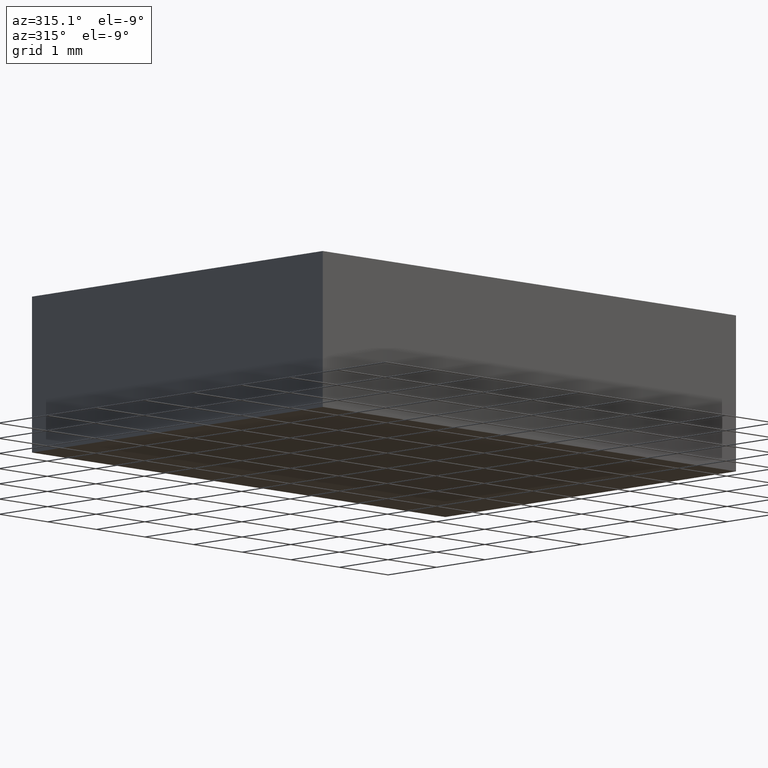
[diagram: clean part render]
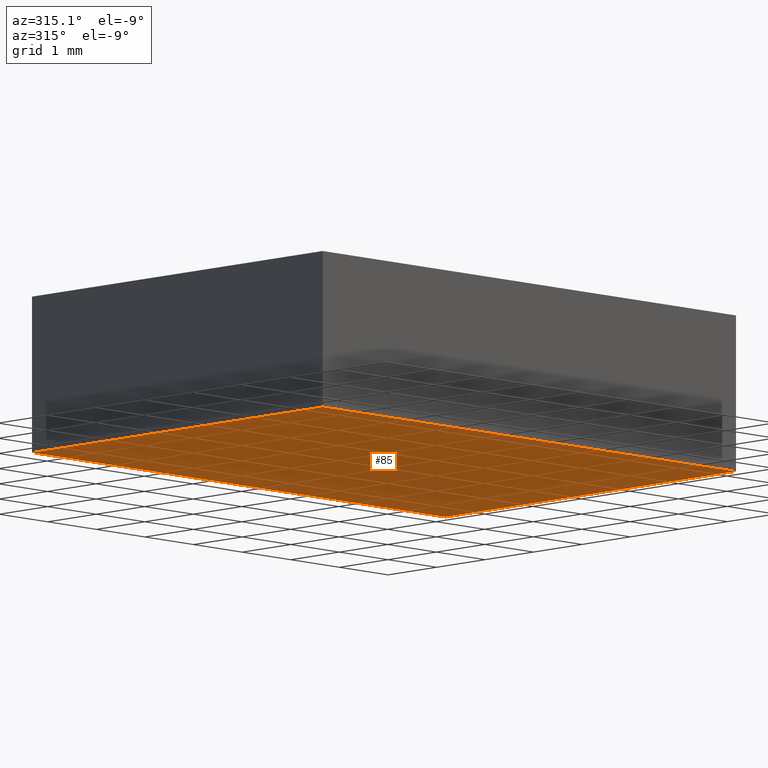
[diagram: same view with one face highlighted and labeled with its STEP entity id]
A machine part, auxiliary view. The second image highlights one B-rep face of the part: STEP entity #85.
In plain terms, the highlighted planar face has unit normal (0, 0, 1).
Its self-contained STEP definition (entity closure, byte-faithful):
#4 = LINE ( 'NONE', #172, #96 ) ;
#10 = CARTESIAN_POINT ( 'NONE',  ( 24.49958715517702100, 9.312648366905317900, 0.0000000000000000000 ) ) ;
#26 = CARTESIAN_POINT ( 'NONE',  ( 15.99958715517701600, 15.31264836690531800, 0.0000000000000000000 ) ) ;
#35 = ORIENTED_EDGE ( 'NONE', *, *, #197, .F. ) ;
#43 = LINE ( 'NONE', #143, #167 ) ;
#47 = DIRECTION ( 'NONE',  ( 5.782411586589360600E-016, -1.000000000000000000, 0.0000000000000000000 ) ) ;
#48 = CARTESIAN_POINT ( 'NONE',  ( 0.0000000000000000000, 0.0000000000000000000, 0.0000000000000000000 ) ) ;
#49 = VECTOR ( 'NONE', #127, 1000.000000000000000 ) ;
#58 = CARTESIAN_POINT ( 'NONE',  ( 15.99958715517702000, 9.312648366905321500, 0.0000000000000000000 ) ) ;
#61 = ORIENTED_EDGE ( 'NONE', *, *, #116, .F. ) ;
#63 = EDGE_CURVE ( 'NONE', #150, #69, #191, .T. ) ;
#64 = DIRECTION ( 'NONE',  ( 0.0000000000000000000, 0.0000000000000000000, 1.000000000000000000 ) ) ;
#67 = VECTOR ( 'NONE', #171, 1000.000000000000000 ) ;
#68 = VERTEX_POINT ( 'NONE', #26 ) ;
#69 = VERTEX_POINT ( 'NONE', #10 ) ;
#72 = VERTEX_POINT ( 'NONE', #109 ) ;
#74 = ORIENTED_EDGE ( 'NONE', *, *, #103, .F. ) ;
#77 = AXIS2_PLACEMENT_3D ( 'NONE', #48, #64, #108 ) ;
#85 = ADVANCED_FACE ( 'NONE', ( #128 ), #158, .F. ) ;
#94 = LINE ( 'NONE', #112, #49 ) ;
#96 = VECTOR ( 'NONE', #101, 1000.000000000000000 ) ;
#101 = DIRECTION ( 'NONE',  ( -1.000000000000000000, 2.040851148208007300E-016, -0.0000000000000000000 ) ) ;
#103 = EDGE_CURVE ( 'NONE', #68, #150, #43, .T. ) ;
#108 = DIRECTION ( 'NONE',  ( 1.000000000000000000, 0.0000000000000000000, -0.0000000000000000000 ) ) ;
#109 = CARTESIAN_POINT ( 'NONE',  ( 24.49958715517702100, 15.31264836690531600, 0.0000000000000000000 ) ) ;
#112 = CARTESIAN_POINT ( 'NONE',  ( 24.49958715517702100, 15.31264836690531600, 0.0000000000000000000 ) ) ;
#114 = ORIENTED_EDGE ( 'NONE', *, *, #63, .F. ) ;
#116 = EDGE_CURVE ( 'NONE', #72, #68, #4, .T. ) ;
#127 = DIRECTION ( 'NONE',  ( -0.0000000000000000000, 1.000000000000000000, -0.0000000000000000000 ) ) ;
#128 = FACE_OUTER_BOUND ( 'NONE', #194, .T. ) ;
#143 = CARTESIAN_POINT ( 'NONE',  ( 15.99958715517701600, 15.31264836690531800, 0.0000000000000000000 ) ) ;
#150 = VERTEX_POINT ( 'NONE', #181 ) ;
#158 = PLANE ( 'NONE',  #77 ) ;
#167 = VECTOR ( 'NONE', #47, 1000.000000000000000 ) ;
#171 = DIRECTION ( 'NONE',  ( 1.000000000000000000, -4.081702296416016500E-016, 0.0000000000000000000 ) ) ;
#172 = CARTESIAN_POINT ( 'NONE',  ( 15.99958715517701600, 15.31264836690531800, 0.0000000000000000000 ) ) ;
#181 = CARTESIAN_POINT ( 'NONE',  ( 15.99958715517702000, 9.312648366905321500, 0.0000000000000000000 ) ) ;
#191 = LINE ( 'NONE', #58, #67 ) ;
#194 = EDGE_LOOP ( 'NONE', ( #74, #61, #35, #114 ) ) ;
#197 = EDGE_CURVE ( 'NONE', #69, #72, #94, .T. ) ;